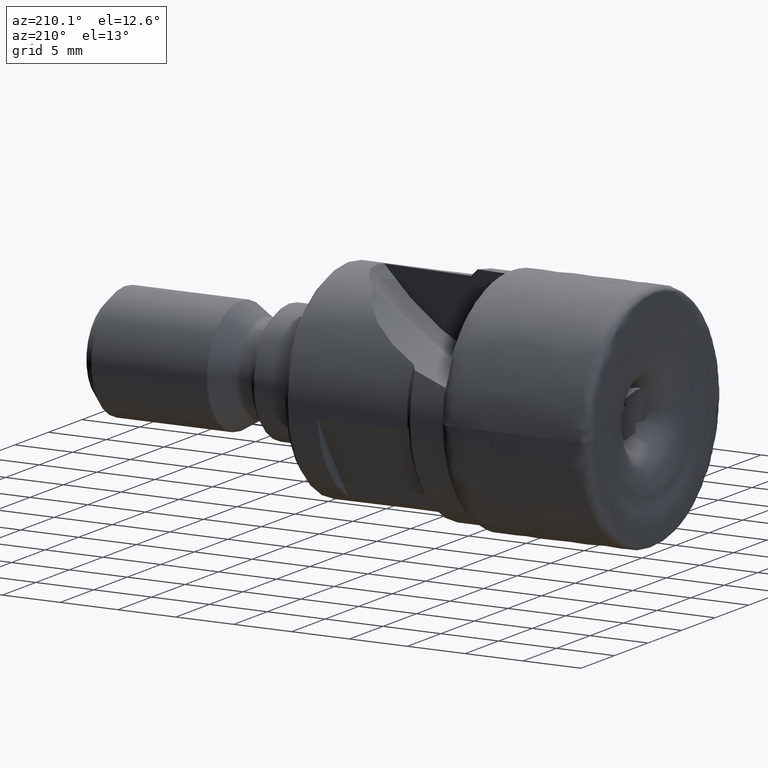
[diagram: clean part render]
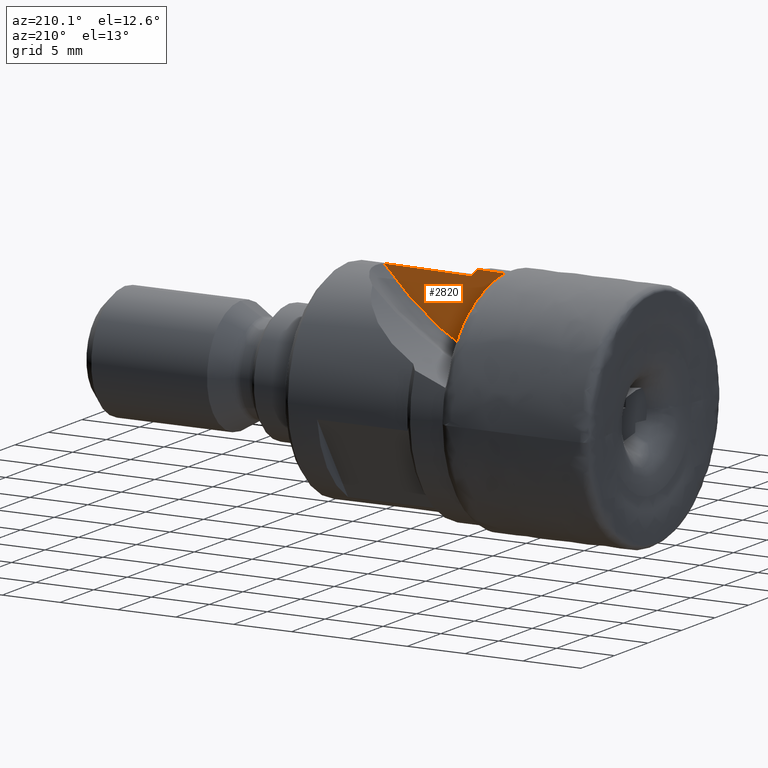
[diagram: same view with one face highlighted and labeled with its STEP entity id]
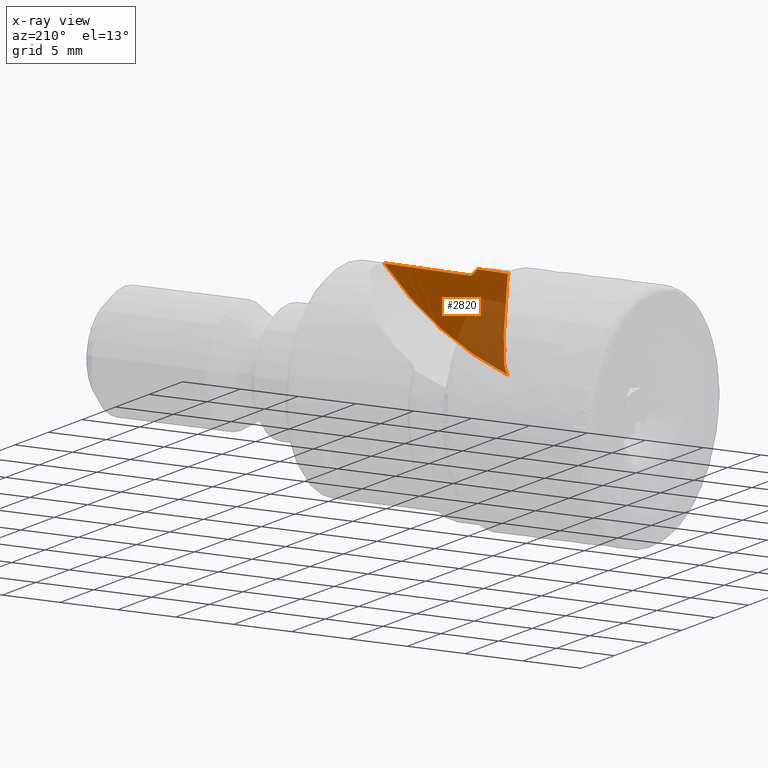
[diagram: x-ray of the same camera — body ghosted, the highlighted face saturated]
A machine part, auxiliary view. The second image highlights one B-rep face of the part: STEP entity #2820.
The next image is the same camera in x-ray: the body ghosted, the highlighted face saturated — about 35% of this face is hidden behind the body in this view.
In plain terms, the highlighted planar face has unit normal (0.0872, 0.9962, 0).
Its self-contained STEP definition (entity closure, byte-faithful):
#43 = CIRCLE ( 'NONE', #3481, 25.02965806788315500 ) ;
#124 = CARTESIAN_POINT ( 'NONE',  ( 5.048284173672081800, 0.3335859159247705500, 10.24368727605621400 ) ) ;
#127 = PLANE ( 'NONE',  #3537 ) ;
#129 = DIRECTION ( 'NONE',  ( 0.08715574274765841600, 0.9961946980917455500, 1.720156117706853300E-016 ) ) ;
#130 = DIRECTION ( 'NONE',  ( -0.9961946980917455500, 0.08715574274765841600, 0.0000000000000000000 ) ) ;
#194 =( BOUNDED_CURVE ( )  B_SPLINE_CURVE ( 3, ( #213, #218, #219, #220 ),
 .UNSPECIFIED., .F., .F. ) 
 B_SPLINE_CURVE_WITH_KNOTS ( ( 4, 4 ),
 ( 0.7423570463329042200, 1.377816592299157600 ),
 .UNSPECIFIED. ) 
 CURVE ( )  GEOMETRIC_REPRESENTATION_ITEM ( )  RATIONAL_B_SPLINE_CURVE ( ( 1.000000000000000000, 0.9666314058851908100, 0.9666314058851908100, 1.000000000000000000 ) ) 
 REPRESENTATION_ITEM ( '' )  );
#213 = CARTESIAN_POINT ( 'NONE',  ( 11.78978982432665700, -0.2562194036039485700, 1.830015437642390500 ) ) ;
#218 = CARTESIAN_POINT ( 'NONE',  ( 12.02523026527547100, -0.2768177731220274900, 2.206605328787132800 ) ) ;
#219 = CARTESIAN_POINT ( 'NONE',  ( 12.13612974877497700, -0.2865202207191148200, 2.646211012262313000 ) ) ;
#220 = CARTESIAN_POINT ( 'NONE',  ( 12.11138659526780300, -0.2843554752873546100, 3.104825417200673100 ) ) ;
#277 = CARTESIAN_POINT ( 'NONE',  ( 4.597869421812975900, 0.3729921005972861600, 25.79591113970277400 ) ) ;
#278 = DIRECTION ( 'NONE',  ( -0.08715574274765840200, -0.9961946980917455500, -0.0000000000000000000 ) ) ;
#279 = DIRECTION ( 'NONE',  ( 0.9961946980917455500, -0.08715574274765840200, 0.0000000000000000000 ) ) ;
#496 = CARTESIAN_POINT ( 'NONE',  ( 14.69339354995590900, -0.5102518129676618700, 9.372766300473189800 ) ) ;
#497 = CARTESIAN_POINT ( 'NONE',  ( 14.49999999999999800, -0.4933320697474856700, 9.567289243508771100 ) ) ;
#498 = CARTESIAN_POINT ( 'NONE',  ( 12.08286211974868400, -0.2818599070464109500, 3.568994378198483600 ) ) ;
#499 = CARTESIAN_POINT ( 'NONE',  ( 12.07202538527822500, -0.2809118156306055800, 3.640957247499863000 ) ) ;
#502 = CARTESIAN_POINT ( 'NONE',  ( 14.88673077543578500, -0.5271666284347065200, 9.178186907723084400 ) ) ;
#503 = CARTESIAN_POINT ( 'NONE',  ( 15.08000000000000000, -0.5440754945925215800, 8.983539494886404200 ) ) ;
#523 = CARTESIAN_POINT ( 'NONE',  ( 11.70670111396695000, -0.2489500833800012100, 10.60567170747447100 ) ) ;
#528 = DIRECTION ( 'NONE',  ( -0.05387302677452462200, 0.004713279112599318700, 0.9985366703262119600 ) ) ;
#721 = CARTESIAN_POINT ( 'NONE',  ( 11.67593176272289800, -0.2462581139621020400, 9.576834390408334800 ) ) ;
#735 = CARTESIAN_POINT ( 'NONE',  ( 12.61773105239599100, -0.3286548751252628700, 9.574715645301818500 ) ) ;
#744 = CARTESIAN_POINT ( 'NONE',  ( 13.55913939342441800, -0.4110174327139974900, 9.571533753027056300 ) ) ;
#745 = CARTESIAN_POINT ( 'NONE',  ( 14.49999999999999800, -0.4933320697474856700, 9.567289243508771100 ) ) ;
#772 = CARTESIAN_POINT ( 'NONE',  ( 12.09416107020001800, -0.2828484371206432800, 3.424100562400773700 ) ) ;
#773 = CARTESIAN_POINT ( 'NONE',  ( 12.09024710840196300, -0.2825060098338403300, 3.496645852977678300 ) ) ;
#801 = CARTESIAN_POINT ( 'NONE',  ( 12.07202538527822500, -0.2809118156306055800, 3.640957247499863000 ) ) ;
#821 = CARTESIAN_POINT ( 'NONE',  ( 23.00731266749878000, -1.237625485224117500, 8.914498480471218400 ) ) ;
#859 = CARTESIAN_POINT ( 'NONE',  ( 12.11138659526780300, -0.2843554752873546100, 3.104825417200673100 ) ) ;
#874 = CARTESIAN_POINT ( 'NONE',  ( 14.49999999999999800, -0.4933320697474856700, 9.567289243508771100 ) ) ;
#878 = FACE_OUTER_BOUND ( 'NONE', #1674, .T. ) ;
#887 = CARTESIAN_POINT ( 'NONE',  ( 15.08000000000000000, -0.5440754945925215800, 8.983539494886404200 ) ) ;
#1266 = LINE ( 'NONE', #523, #1270 ) ;
#1270 = VECTOR ( 'NONE', #528, 1000.000000000000100 ) ;
#1354 = VERTEX_POINT ( 'NONE', #801 ) ;
#1367 = VERTEX_POINT ( 'NONE', #821 ) ;
#1400 = VERTEX_POINT ( 'NONE', #887 ) ;
#1403 = VERTEX_POINT ( 'NONE', #874 ) ;
#1419 = VERTEX_POINT ( 'NONE', #859 ) ;
#1433 = VERTEX_POINT ( 'NONE', #3185 ) ;
#1438 = VERTEX_POINT ( 'NONE', #3165 ) ;
#1445 = VERTEX_POINT ( 'NONE', #3114 ) ;
#1674 = EDGE_LOOP ( 'NONE', ( #4084, #4080, #3958, #4002, #3964, #1700, #1734, #1752, #1750 ) ) ;
#1700 = ORIENTED_EDGE ( 'NONE', *, *, #3655, .T. ) ;
#1734 = ORIENTED_EDGE ( 'NONE', *, *, #3525, .T. ) ;
#1750 = ORIENTED_EDGE ( 'NONE', *, *, #3230, .F. ) ;
#1752 = ORIENTED_EDGE ( 'NONE', *, *, #3369, .T. ) ;
#1774 = VERTEX_POINT ( 'NONE', #3149 ) ;
#1934 = CARTESIAN_POINT ( 'NONE',  ( 11.78749545473486300, -0.2560186722742489000, 9.261832028360016600 ) ) ;
#1935 = CARTESIAN_POINT ( 'NONE',  ( 11.77480393433381200, -0.2549083081162418200, 9.320366333774263300 ) ) ;
#1936 = CARTESIAN_POINT ( 'NONE',  ( 11.78936662556909100, -0.2561823785097281400, 9.202359398875900700 ) ) ;
#1937 = CARTESIAN_POINT ( 'NONE',  ( 11.79846622415002400, -0.2569784902281963000, 9.083878712986294300 ) ) ;
#1938 = CARTESIAN_POINT ( 'NONE',  ( 11.81211546263601000, -0.2581726438615101800, 8.906157670330264500 ) ) ;
#1939 = CARTESIAN_POINT ( 'NONE',  ( 11.84396250165426800, -0.2609588987424765200, 8.491475134781403300 ) ) ;
#1940 = CARTESIAN_POINT ( 'NONE',  ( 11.90765117110999500, -0.2665309353149085700, 7.662109571211213500 ) ) ;
#1941 = CARTESIAN_POINT ( 'NONE',  ( 11.96223010023000700, -0.2713059728802819600, 6.951223907847881000 ) ) ;
#1942 = CARTESIAN_POINT ( 'NONE',  ( 12.03498352605284100, -0.2776710728724539600, 6.003374927339104200 ) ) ;
#1943 = CARTESIAN_POINT ( 'NONE',  ( 12.07378933185920600, -0.2810661409595066600, 5.529615574589480600 ) ) ;
#1944 = CARTESIAN_POINT ( 'NONE',  ( 12.14040575424688700, -0.2868943227230829100, 4.581348917913063100 ) ) ;
#1945 = CARTESIAN_POINT ( 'NONE',  ( 12.16248897120397900, -0.2888263538610138000, 4.103220063150429200 ) ) ;
#1946 = CARTESIAN_POINT ( 'NONE',  ( 12.07202538527822500, -0.2809118156306055800, 3.640957247499863000 ) ) ;
#1947 = CARTESIAN_POINT ( 'NONE',  ( 15.08000000000000000, -0.5440754945925215800, 8.983539494886404200 ) ) ;
#1948 = CARTESIAN_POINT ( 'NONE',  ( 17.73196722480038900, -0.7760925628048616100, 8.969487705921329400 ) ) ;
#1953 = CARTESIAN_POINT ( 'NONE',  ( 20.37572655278316000, -1.007391533094270000, 8.946462522794409000 ) ) ;
#1954 = CARTESIAN_POINT ( 'NONE',  ( 23.00731266749878000, -1.237625485224117500, 8.914498480471218400 ) ) ;
#2531 = CARTESIAN_POINT ( 'NONE',  ( 11.67593176272289800, -0.2462581139621020400, 9.576834390408334800 ) ) ;
#2532 = CARTESIAN_POINT ( 'NONE',  ( 11.72232284579016000, -0.2503168078191767600, 9.497374026619567600 ) ) ;
#2537 = CARTESIAN_POINT ( 'NONE',  ( 11.75531446093839300, -0.2532032001360597900, 9.410253341165116600 ) ) ;
#2538 = CARTESIAN_POINT ( 'NONE',  ( 11.77480393433381200, -0.2549083081162418200, 9.320366333774263300 ) ) ;
#2820 = ADVANCED_FACE ( 'NONE', ( #878 ), #127, .T. ) ;
#3114 = CARTESIAN_POINT ( 'NONE',  ( 12.09416107020001800, -0.2828484371206432800, 3.424100562400773700 ) ) ;
#3149 = CARTESIAN_POINT ( 'NONE',  ( 11.67593176272289800, -0.2462581139621020400, 9.576834390408334800 ) ) ;
#3165 = CARTESIAN_POINT ( 'NONE',  ( 11.77480393433381200, -0.2549083081162418200, 9.320366333774263300 ) ) ;
#3185 = CARTESIAN_POINT ( 'NONE',  ( 11.78978982432665700, -0.2562194036039485700, 1.830015437642390500 ) ) ;
#3218 =( BOUNDED_CURVE ( )  B_SPLINE_CURVE ( 3, ( #1947, #1948, #1953, #1954 ),
 .UNSPECIFIED., .F., .F. ) 
 B_SPLINE_CURVE_WITH_KNOTS ( ( 4, 4 ),
 ( 1.631286041479809600, 1.708747399731638500 ),
 .UNSPECIFIED. ) 
 CURVE ( )  GEOMETRIC_REPRESENTATION_ITEM ( )  RATIONAL_B_SPLINE_CURVE ( ( 1.000000000000000000, 0.9995000406671487000, 0.9995000406671487000, 1.000000000000000000 ) ) 
 REPRESENTATION_ITEM ( '' )  );
#3222 = B_SPLINE_CURVE_WITH_KNOTS ( 'NONE', 3,
 ( #1935, #1934, #1936, #1937, #1938, #1939, #1940, #1941, #1942, #1943, #1944, #1945, #1946 ),
 .UNSPECIFIED., .F., .F.,
 ( 4, 2, 1, 1, 1, 2, 2, 4 ),
 ( 0.0003312866147528884900, 0.0005102832774554246800, 0.0006892799401579609200, 0.001047273265563039000, 0.001763259916373194700, 0.003195233217993500900, 0.004627206519613806900, 0.006059179821234113300 ),
 .UNSPECIFIED. ) ;
#3230 = EDGE_CURVE ( 'NONE', #1438, #1354, #3222, .T. ) ;
#3234 = EDGE_CURVE ( 'NONE', #1400, #1367, #3218, .T. ) ;
#3359 = EDGE_CURVE ( 'NONE', #1774, #1403, #3778, .T. ) ;
#3369 = EDGE_CURVE ( 'NONE', #1445, #1354, #3770, .T. ) ;
#3370 = EDGE_CURVE ( 'NONE', #1403, #1400, #3764, .T. ) ;
#3481 = AXIS2_PLACEMENT_3D ( 'NONE', #277, #278, #279 ) ;
#3525 = EDGE_CURVE ( 'NONE', #1419, #1445, #1266, .T. ) ;
#3537 = AXIS2_PLACEMENT_3D ( 'NONE', #124, #129, #130 ) ;
#3638 = EDGE_CURVE ( 'NONE', #1774, #1438, #4189, .T. ) ;
#3655 = EDGE_CURVE ( 'NONE', #1433, #1419, #194, .T. ) ;
#3675 = EDGE_CURVE ( 'NONE', #1433, #1367, #43, .T. ) ;
#3764 = B_SPLINE_CURVE_WITH_KNOTS ( 'NONE', 3,
 ( #497, #496, #502, #503 ),
 .UNSPECIFIED., .F., .F.,
 ( 4, 4 ),
 ( 2.842089025281972200E-007, 0.0008247468606834806600 ),
 .UNSPECIFIED. ) ;
#3770 =( BOUNDED_CURVE ( )  B_SPLINE_CURVE ( 3, ( #772, #773, #498, #499 ),
 .UNSPECIFIED., .F., .F. ) 
 B_SPLINE_CURVE_WITH_KNOTS ( ( 4, 4 ),
 ( 1.377816592299157600, 1.480020509457536500 ),
 .UNSPECIFIED. ) 
 CURVE ( )  GEOMETRIC_REPRESENTATION_ITEM ( )  RATIONAL_B_SPLINE_CURVE ( ( 1.000000000000000000, 0.9991297193561650100, 0.9991297193561650100, 1.000000000000000000 ) ) 
 REPRESENTATION_ITEM ( '' )  );
#3778 =( BOUNDED_CURVE ( )  B_SPLINE_CURVE ( 3, ( #721, #735, #744, #745 ),
 .UNSPECIFIED., .F., .F. ) 
 B_SPLINE_CURVE_WITH_KNOTS ( ( 4, 4 ),
 ( 1.596504598403470700, 1.622315154577030900 ),
 .UNSPECIFIED. ) 
 CURVE ( )  GEOMETRIC_REPRESENTATION_ITEM ( )  RATIONAL_B_SPLINE_CURVE ( ( 1.000000000000000000, 0.9999444853696533000, 0.9999444853696533000, 1.000000000000000000 ) ) 
 REPRESENTATION_ITEM ( '' )  );
#3958 = ORIENTED_EDGE ( 'NONE', *, *, #3370, .T. ) ;
#3964 = ORIENTED_EDGE ( 'NONE', *, *, #3675, .F. ) ;
#4002 = ORIENTED_EDGE ( 'NONE', *, *, #3234, .T. ) ;
#4080 = ORIENTED_EDGE ( 'NONE', *, *, #3359, .T. ) ;
#4084 = ORIENTED_EDGE ( 'NONE', *, *, #3638, .F. ) ;
#4189 = B_SPLINE_CURVE_WITH_KNOTS ( 'NONE', 3,
 ( #2531, #2532, #2537, #2538 ),
 .UNSPECIFIED., .F., .F.,
 ( 4, 4 ),
 ( 5.641405532941052000E-005, 0.0003312866147528884900 ),
 .UNSPECIFIED. ) ;